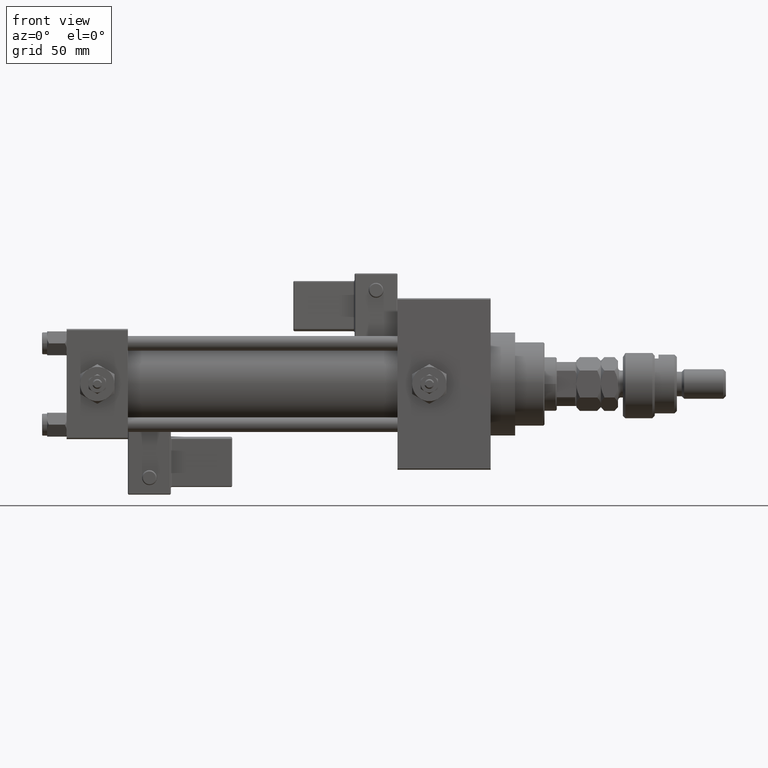
[diagram: clean part render]
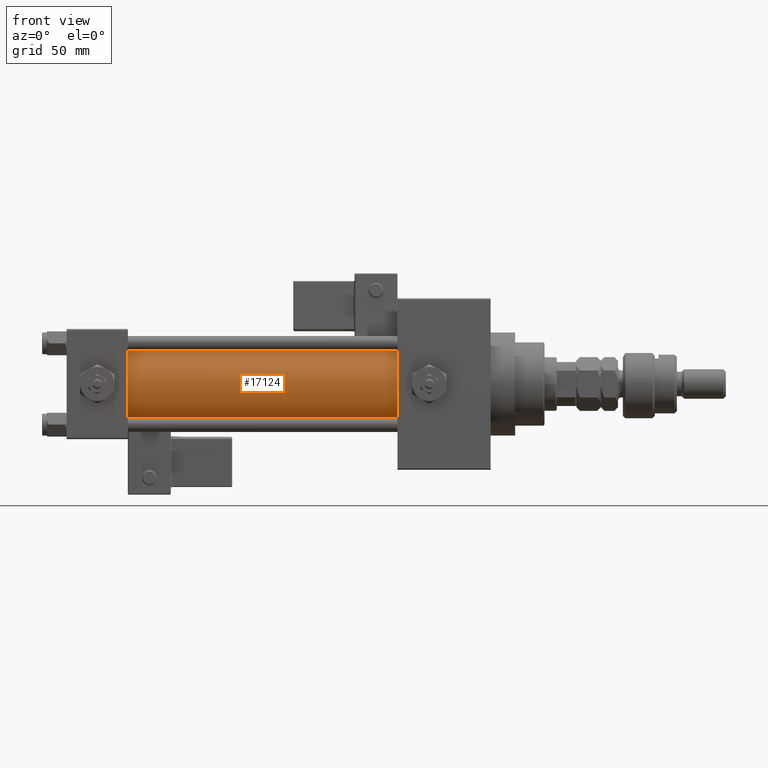
[diagram: same view with one face highlighted and labeled with its STEP entity id]
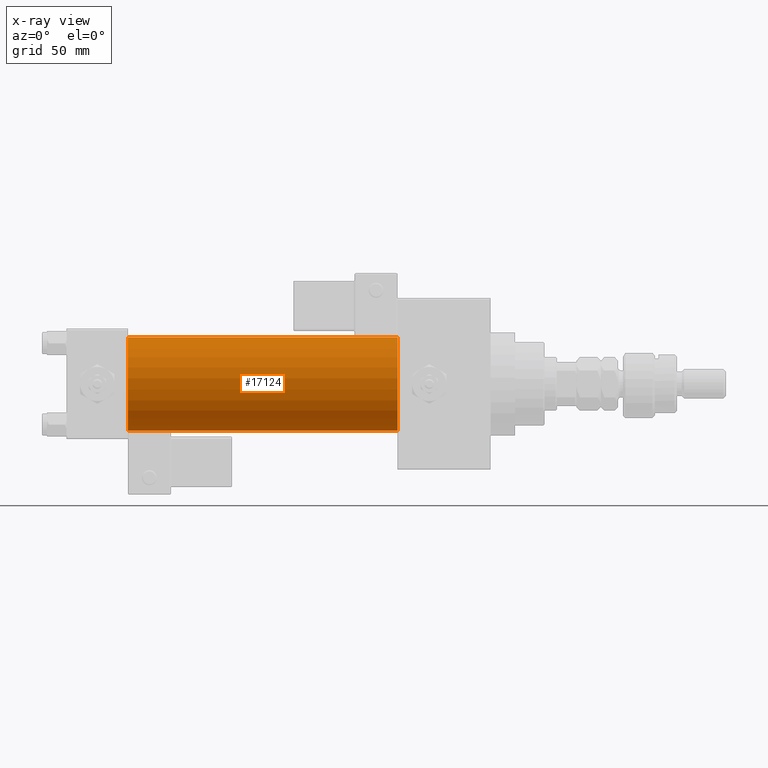
[diagram: x-ray of the same camera — body ghosted, the highlighted face saturated]
A machine part, front view. The second image highlights one B-rep face of the part: STEP entity #17124.
The next image is the same camera in x-ray: the body ghosted, the highlighted face saturated — about 0% of this face is hidden behind the body in this view.
In plain terms, the highlighted cylindrical surface (partial cylindrical patch) has radius 19 mm, axis along (-1, -0, -0).
Its self-contained STEP definition (entity closure, byte-faithful):
#1866 = DIRECTION ( 'NONE',  ( -1.000000000000000000, -0.000000000000000000, -0.000000000000000000 ) ) ;
#2145 = AXIS2_PLACEMENT_3D ( 'NONE', #35456, #32166, #36253 ) ;
#2421 = CARTESIAN_POINT ( 'NONE',  ( 135.0000000000000000, -2.602085213965210642E-15, 19.00000000000000000 ) ) ;
#2682 = LINE ( 'NONE', #2421, #43544 ) ;
#6422 = DIRECTION ( 'NONE',  ( 0.000000000000000000, 0.000000000000000000, 1.000000000000000000 ) ) ;
#7680 = EDGE_CURVE ( 'NONE', #45163, #21636, #48640, .T. ) ;
#10161 = DIRECTION ( 'NONE',  ( 0.000000000000000000, 0.000000000000000000, 1.000000000000000000 ) ) ;
#10271 = CARTESIAN_POINT ( 'NONE',  ( 24.99999999999999289, -2.602085213965210642E-15, 0.000000000000000000 ) ) ;
#10686 = CARTESIAN_POINT ( 'NONE',  ( 135.0000000000000000, -2.752562955852396712E-16, -19.00000000000000000 ) ) ;
#10978 = DIRECTION ( 'NONE',  ( -1.000000000000000000, -0.000000000000000000, -0.000000000000000000 ) ) ;
#13171 = EDGE_CURVE ( 'NONE', #41151, #21636, #19446, .T. ) ;
#14282 = EDGE_CURVE ( 'NONE', #44023, #45163, #2682, .T. ) ;
#14975 = ORIENTED_EDGE ( 'NONE', *, *, #32686, .F. ) ;
#17124 = ADVANCED_FACE ( 'NONE', ( #31814 ), #48539, .T. ) ;
#18611 = EDGE_LOOP ( 'NONE', ( #43552, #14975, #33738, #31112 ) ) ;
#19446 = LINE ( 'NONE', #10686, #43499 ) ;
#21636 = VERTEX_POINT ( 'NONE', #45895 ) ;
#21776 = CARTESIAN_POINT ( 'NONE',  ( 135.0000000000000000, -2.752562955852396712E-16, -19.00000000000000000 ) ) ;
#28016 = AXIS2_PLACEMENT_3D ( 'NONE', #51550, #10978, #10161 ) ;
#31112 = ORIENTED_EDGE ( 'NONE', *, *, #7680, .T. ) ;
#31159 = CARTESIAN_POINT ( 'NONE',  ( 24.99999999999999289, -2.602085213965210642E-15, 19.00000000000000000 ) ) ;
#31814 = FACE_OUTER_BOUND ( 'NONE', #18611, .T. ) ;
#32166 = DIRECTION ( 'NONE',  ( 1.000000000000000000, 0.000000000000000000, 0.000000000000000000 ) ) ;
#32686 = EDGE_CURVE ( 'NONE', #44023, #41151, #50302, .T. ) ;
#33738 = ORIENTED_EDGE ( 'NONE', *, *, #14282, .T. ) ;
#35196 = CARTESIAN_POINT ( 'NONE',  ( 135.0000000000000000, -2.602085213965210642E-15, 19.00000000000000000 ) ) ;
#35456 = CARTESIAN_POINT ( 'NONE',  ( 135.0000000000000000, -2.602085213965210642E-15, 0.000000000000000000 ) ) ;
#36253 = DIRECTION ( 'NONE',  ( 0.000000000000000000, 0.000000000000000000, -1.000000000000000000 ) ) ;
#40776 = AXIS2_PLACEMENT_3D ( 'NONE', #10271, #51930, #6422 ) ;
#41151 = VERTEX_POINT ( 'NONE', #21776 ) ;
#43499 = VECTOR ( 'NONE', #48247, 1000.000000000000000 ) ;
#43544 = VECTOR ( 'NONE', #1866, 1000.000000000000000 ) ;
#43552 = ORIENTED_EDGE ( 'NONE', *, *, #13171, .F. ) ;
#44023 = VERTEX_POINT ( 'NONE', #35196 ) ;
#45163 = VERTEX_POINT ( 'NONE', #31159 ) ;
#45895 = CARTESIAN_POINT ( 'NONE',  ( 24.99999999999999289, -2.752562955852396712E-16, -19.00000000000000000 ) ) ;
#48247 = DIRECTION ( 'NONE',  ( -1.000000000000000000, -0.000000000000000000, -0.000000000000000000 ) ) ;
#48539 = CYLINDRICAL_SURFACE ( 'NONE', #28016, 19.00000000000000000 ) ;
#48640 = CIRCLE ( 'NONE', #40776, 19.00000000000000000 ) ;
#50302 = CIRCLE ( 'NONE', #2145, 19.00000000000000000 ) ;
#51550 = CARTESIAN_POINT ( 'NONE',  ( 135.0000000000000000, -2.602085213965210642E-15, 0.000000000000000000 ) ) ;
#51930 = DIRECTION ( 'NONE',  ( 1.000000000000000000, -0.000000000000000000, 0.000000000000000000 ) ) ;